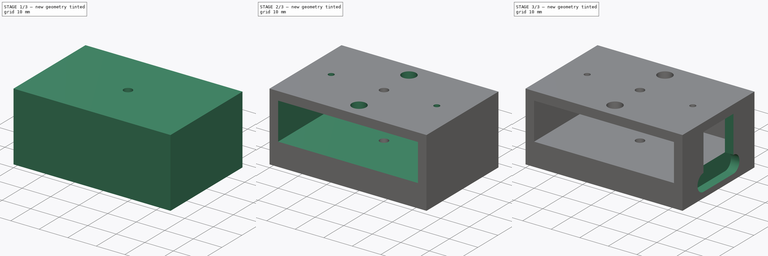
[diagram: build sequence overview — one tinted view per stage of 3, left to right]
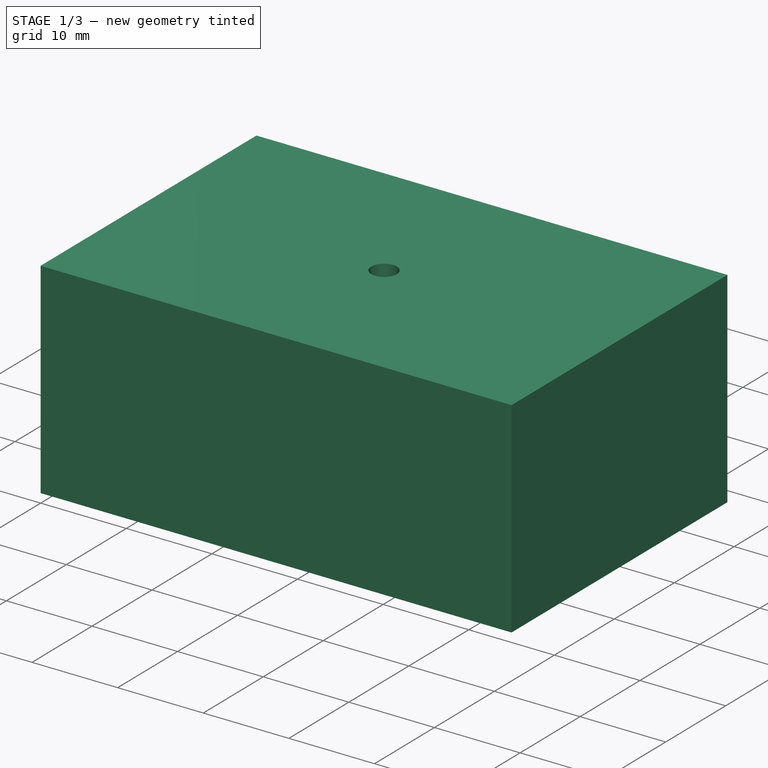
[diagram: stage 1 of 3 — iso view after this stage's code; geometry added in this stage tinted green]
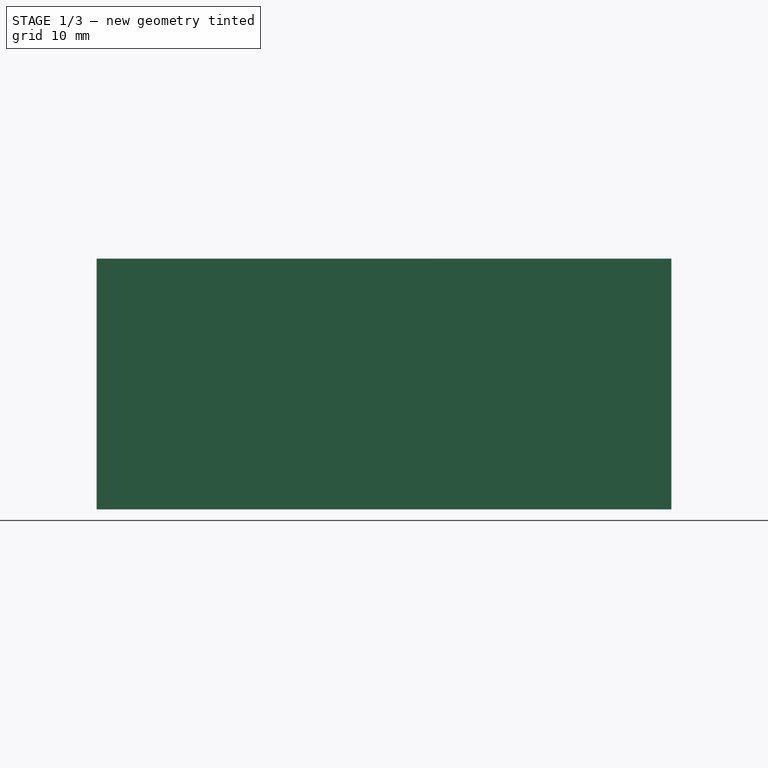
[diagram: stage 1 of 3 — front view after this stage's code; geometry added in this stage tinted green]
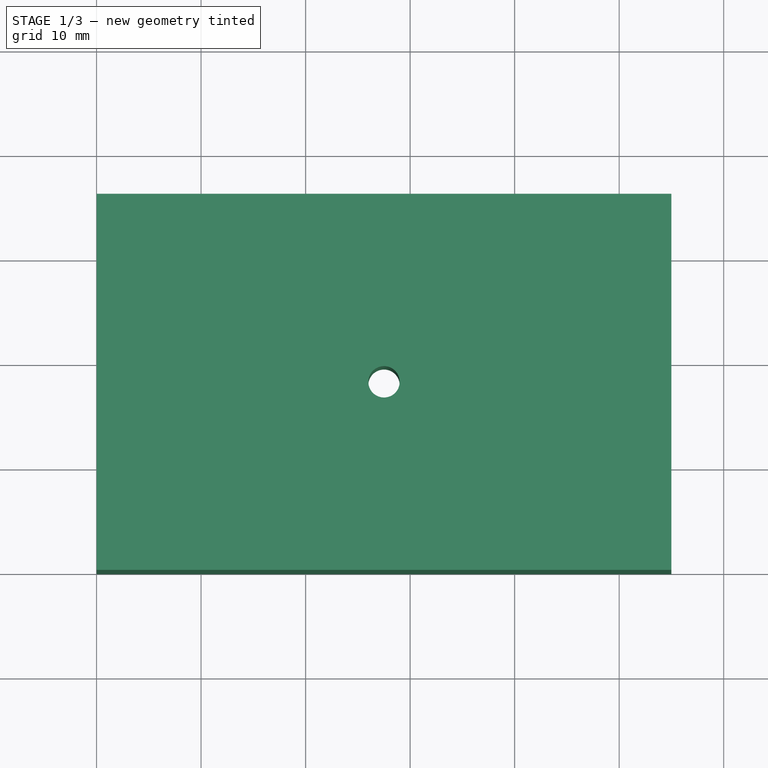
[diagram: stage 1 of 3 — top view after this stage's code; geometry added in this stage tinted green]
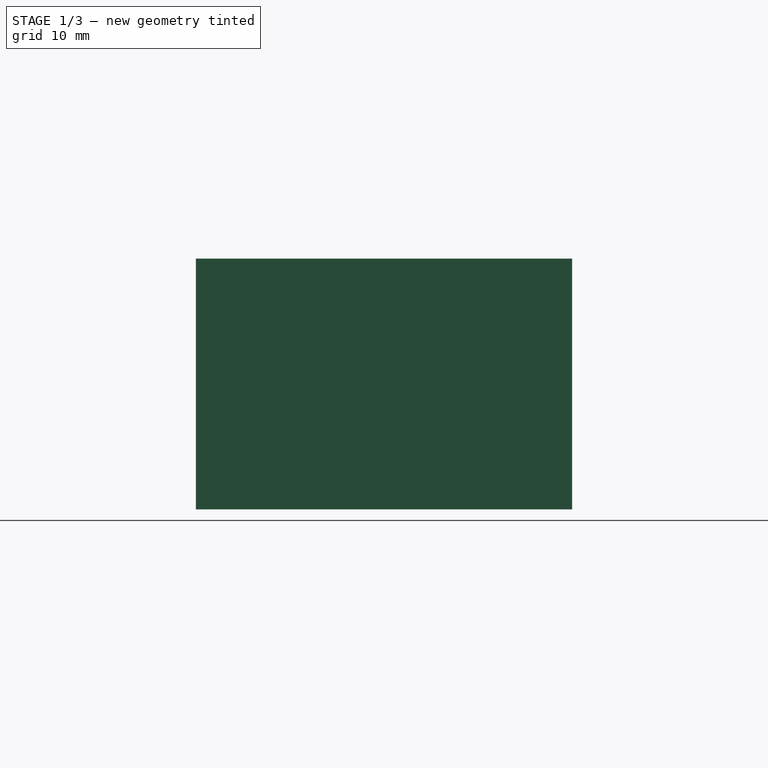
[diagram: stage 1 of 3 — right view after this stage's code; geometry added in this stage tinted green]
FCSTD DOCUMENT  (FreeCAD 0.16R6706 (Git))
Label: mechnical_box_v3
License: All rights reserved
LicenseURL: http://en.wikipedia.org/wiki/All_rights_reserved
objects: Sketcher::SketchObject×6, PartDesign::Pocket×5, PartDesign::Pad×1
note: 18 computed .brp shape members not serialized (recipe doc carries the construction recipe); baked Part::Feature solids carry a one-line shape summary decoded from their .brp

FEATURE [Sketcher::SketchObject] Sketch
  sketch-geometry (5):
    g0: LineSegment StartX=0 StartY=36 StartZ=0 EndX=55 EndY=36 EndZ=0
    g1: LineSegment StartX=55 StartY=36 StartZ=0 EndX=55 EndY=0 EndZ=0
    g2: LineSegment StartX=55 StartY=0 StartZ=0 EndX=0 EndY=0 EndZ=0
    g3: LineSegment StartX=0 StartY=0 StartZ=0 EndX=0 EndY=36 EndZ=0
    g4: Circle CenterX=27.5 CenterY=18 CenterZ=0 NormalX=0 NormalY=0 NormalZ=1 Radius=1.5
  constraints (14):
    c: Coincident(g0,g1)
    c: Coincident(g1,g2)
    c: Coincident(g2,g3)
    c: Coincident(g3,g0)
    c: Horizontal(g0)
    c: Horizontal(g2)
    c: Vertical(g1)
    c: Vertical(g3)
    c: DistanceX(g0,g0) = 55
    c: DistanceY(g1,g1) = 36
    c: Coincident(g2,g-1)
    c: Radius(g4) = 1.5
    c: DistanceX(g-1,g4) = 27.5
    c: DistanceY(g-1,g4) = 18
FEATURE [PartDesign::Pad] Pad
  Length = 24
  Length2 = 100
  Sketch = -> Sketch
  Type = 0
FEATURE [Sketcher::SketchObject] Sketch001
  ExternalGeometry = -> [Pad]
  Placement = pos=(0,0,0) rot=(1,0,0;3.14159rad)
  Support = -> Pad [Face6]
  sketch-geometry (1):
    g0: Circle CenterX=27.5 CenterY=-18 CenterZ=0 NormalX=0 NormalY=0 NormalZ=1 Radius=12.5
  constraints (2):
    c: Radius(g0) = 12.5
    c: Coincident(g0,g-3)
FEATURE [PartDesign::Pocket] Pocket
  Length = 5
  Sketch = -> Sketch001
  Type = 0
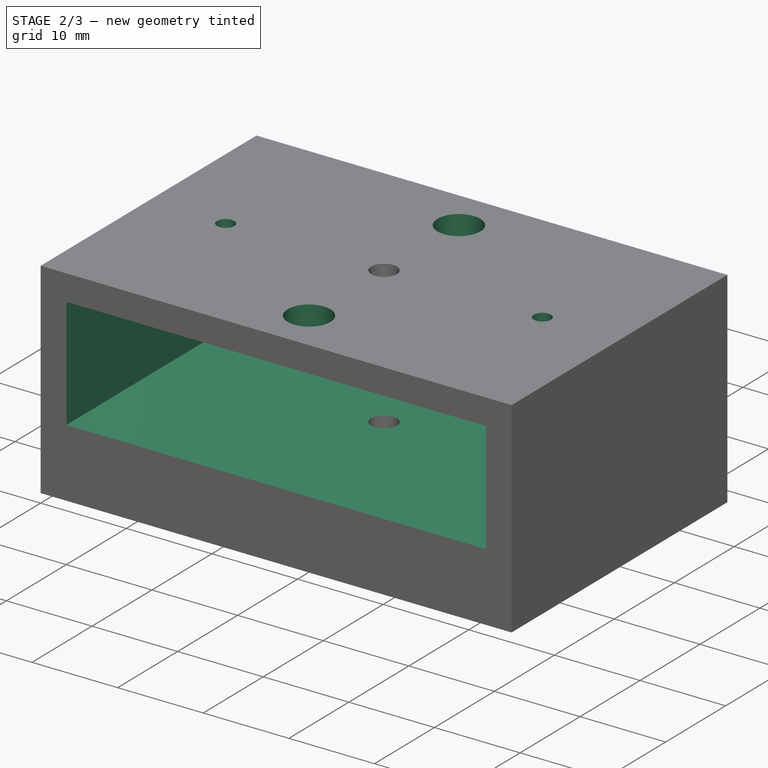
[diagram: stage 2 of 3 — iso view after this stage's code; geometry added in this stage tinted green]
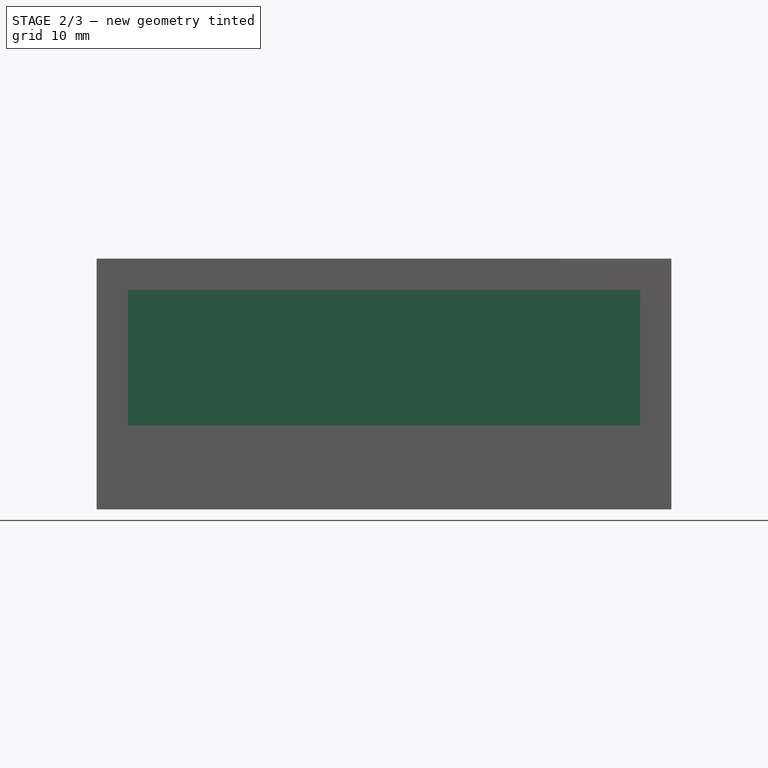
[diagram: stage 2 of 3 — front view after this stage's code; geometry added in this stage tinted green]
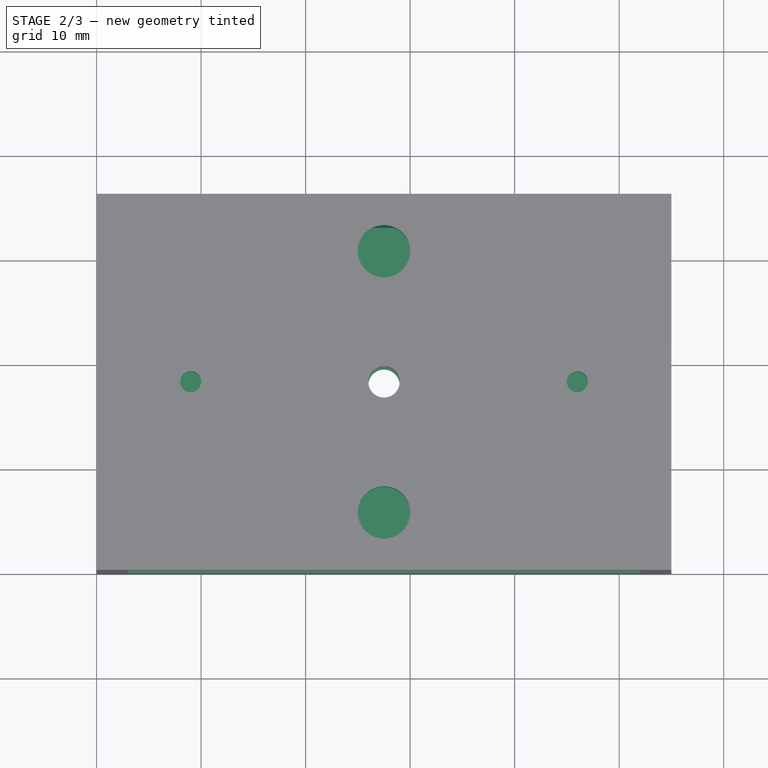
[diagram: stage 2 of 3 — top view after this stage's code; geometry added in this stage tinted green]
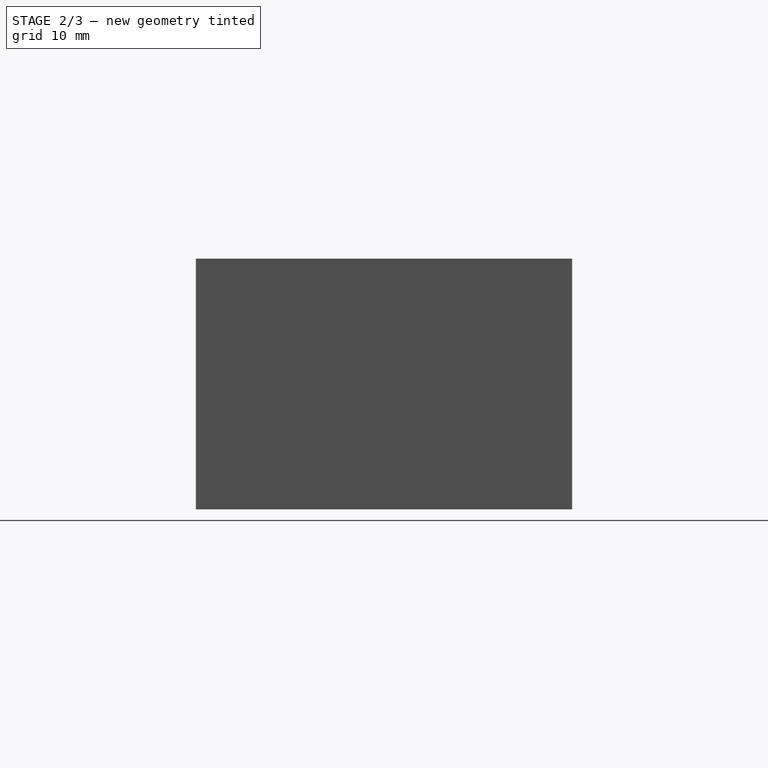
[diagram: stage 2 of 3 — right view after this stage's code; geometry added in this stage tinted green]
FEATURE [Sketcher::SketchObject] Sketch002
  ExternalGeometry = -> [Pocket]
  Placement = pos=(0,0,0) rot=(1,0,0;1.5708rad)
  Support = -> Pocket [Face6]
  sketch-geometry (4):
    g0: LineSegment StartX=3 StartY=21 StartZ=0 EndX=52 EndY=21 EndZ=0
    g1: LineSegment StartX=52 StartY=21 StartZ=0 EndX=52 EndY=8 EndZ=0
    g2: LineSegment StartX=52 StartY=8 StartZ=0 EndX=3 EndY=8 EndZ=0
    g3: LineSegment StartX=3 StartY=8 StartZ=0 EndX=3 EndY=21 EndZ=0
  constraints (12):
    c: Coincident(g0,g1)
    c: Coincident(g1,g2)
    c: Coincident(g2,g3)
    c: Coincident(g3,g0)
    c: Horizontal(g0)
    c: Horizontal(g2)
    c: Vertical(g1)
    c: Vertical(g3)
    c: DistanceY(g-1,g2) = 8
    c: DistanceX(g-1,g2) = 3
    c: DistanceX(g1,g-5) = 3
    c: DistanceY(g0,g-6) = 3
FEATURE [PartDesign::Pocket] Pocket001
  Length = 33
  Sketch = -> Sketch002
  Type = 0
FEATURE [Sketcher::SketchObject] Sketch003
  ExternalGeometry = -> [Pocket001]
  Placement = pos=(0,0,24) rot=(0,0,1;0rad)
  Support = -> Pocket001 [Face5]
  sketch-geometry (4):
    g0: Circle CenterX=9 CenterY=18 CenterZ=0 NormalX=0 NormalY=0 NormalZ=1 Radius=1
    g1: Circle CenterX=46 CenterY=18 CenterZ=0 NormalX=0 NormalY=0 NormalZ=1 Radius=1
    g2: Circle CenterX=27.5 CenterY=30.5 CenterZ=0 NormalX=0 NormalY=0 NormalZ=1 Radius=2.5
    g3: Circle CenterX=27.5 CenterY=5.5 CenterZ=0 NormalX=0 NormalY=0 NormalZ=1 Radius=2.5
  constraints (12):
    c: Radius(g0) = 1
    c: Radius(g1) = 1
    c: DistanceX(g0,g-7) = 18.5
    c: DistanceX(g-7,g1) = 18.5
    c: DistanceY(g-7,g0) = 0
    c: DistanceY(g-7,g1) = 0
    c: Radius(g2) = 2.5
    c: Radius(g3) = 2.5
    c: DistanceX(g3,g-7) = 0
    c: DistanceX(g2,g-7) = 0
    c: DistanceY(g2,g-6) = 5.5
    c: DistanceY(g-1,g3) = 5.5
FEATURE [PartDesign::Pocket] Pocket002
  Length = 3
  Sketch = -> Sketch003
  Type = 0
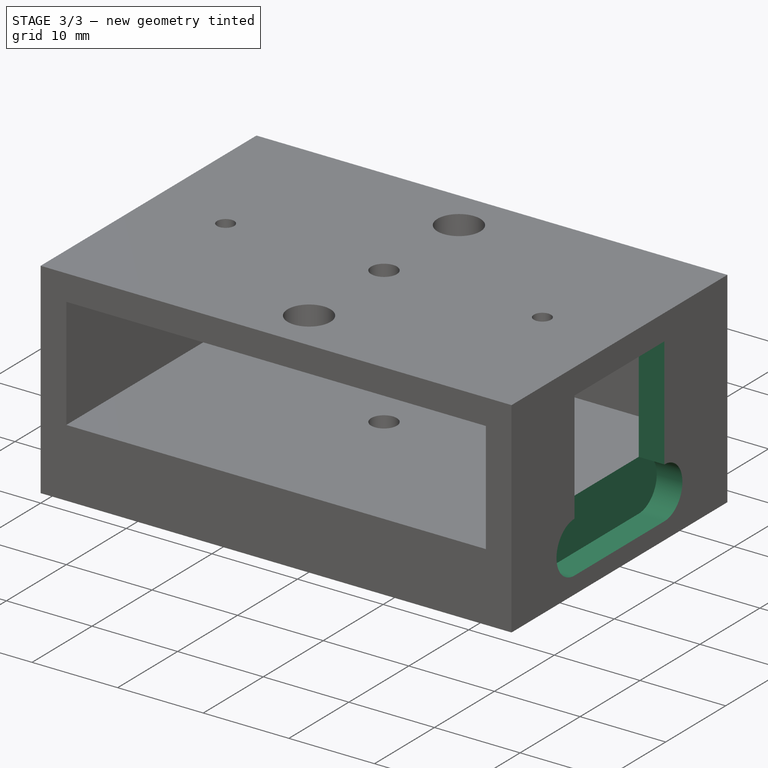
[diagram: stage 3 of 3 — iso view after this stage's code; geometry added in this stage tinted green]
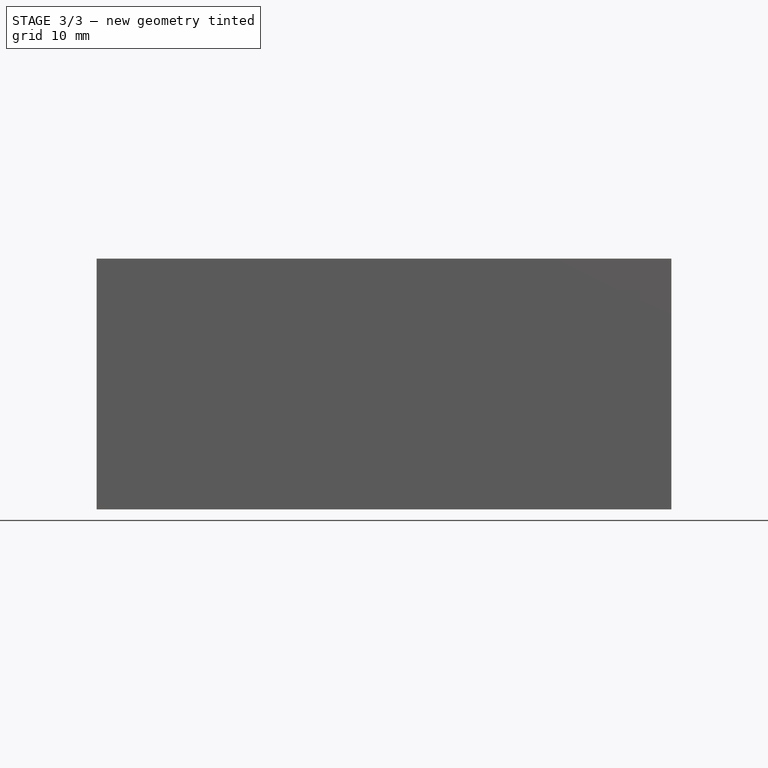
[diagram: stage 3 of 3 — front view after this stage's code; geometry added in this stage tinted green]
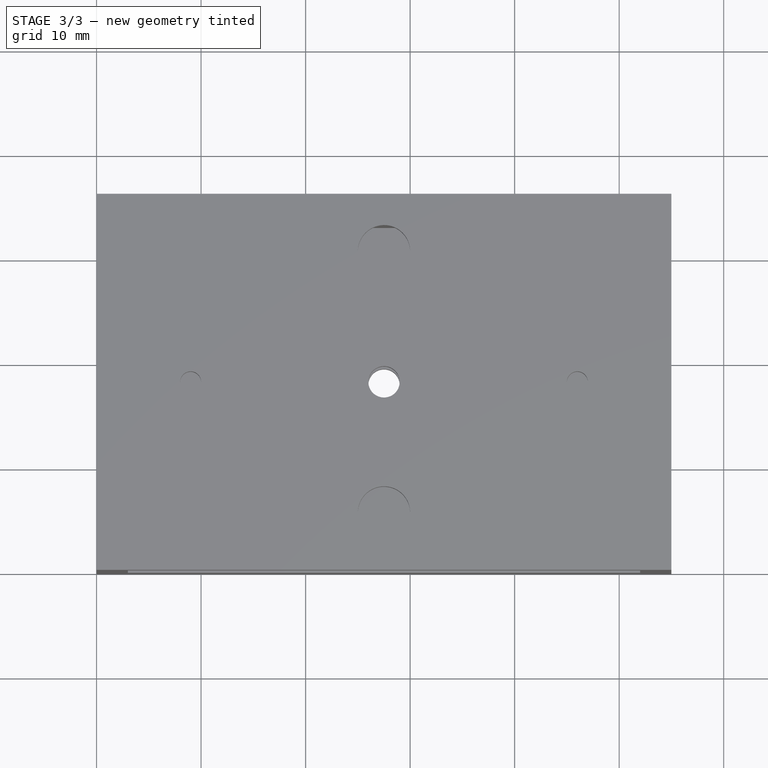
[diagram: stage 3 of 3 — top view after this stage's code; geometry added in this stage tinted green]
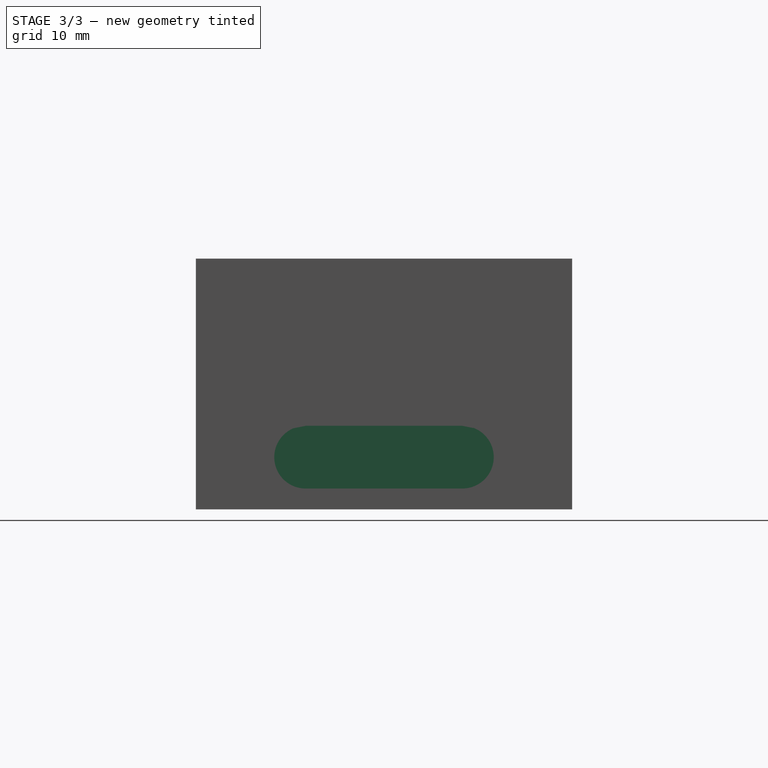
[diagram: stage 3 of 3 — right view after this stage's code; geometry added in this stage tinted green]
FEATURE [Sketcher::SketchObject] Sketch004
  ExternalGeometry = -> [Pocket002]
  Placement = pos=(55,0,0) rot=(0.57735,0.57735,0.57735;2.0944rad)
  Support = -> Pocket002 [Face3]
  sketch-geometry (4):
    g0: LineSegment StartX=10.5 StartY=21 StartZ=0 EndX=25.5 EndY=21 EndZ=0
    g1: LineSegment StartX=25.5 StartY=21 StartZ=0 EndX=25.5 EndY=8 EndZ=0
    g2: LineSegment StartX=25.5 StartY=8 StartZ=0 EndX=10.5 EndY=8 EndZ=0
    g3: LineSegment StartX=10.5 StartY=8 StartZ=0 EndX=10.5 EndY=21 EndZ=0
  constraints (12):
    c: Coincident(g0,g1)
    c: Coincident(g1,g2)
    c: Coincident(g2,g3)
    c: Coincident(g3,g0)
    c: Horizontal(g0)
    c: Horizontal(g2)
    c: Vertical(g1)
    c: Vertical(g3)
    c: DistanceX(g0,g0) = 15
    c: DistanceY(g1,g1) = 13
    c: DistanceY(g0,g-4) = 3
    c: DistanceX(g-4,g0) = 10.5
FEATURE [PartDesign::Pocket] Pocket003
  Length = 3
  Sketch = -> Sketch004
  Type = 0
FEATURE [Sketcher::SketchObject] Sketch005
  ExternalGeometry = -> [Pocket003]
  Placement = pos=(55,0,0) rot=(0.57735,0.57735,0.57735;2.0944rad)
  Support = -> Pocket003 [Face3]
  sketch-geometry (4):
    g0: ArcOfCircle CenterX=10.5 CenterY=5 CenterZ=0 NormalX=0 NormalY=0 NormalZ=1 Radius=3 StartAngle=1.5708 EndAngle=4.71239
    g1: ArcOfCircle CenterX=25.5 CenterY=5 CenterZ=0 NormalX=0 NormalY=0 NormalZ=1 Radius=3 StartAngle=4.71239 EndAngle=7.85398
    g2: LineSegment StartX=10.5 StartY=2 StartZ=0 EndX=25.5 EndY=2 EndZ=0
    g3: LineSegment StartX=10.5 StartY=8 StartZ=0 EndX=25.5 EndY=8 EndZ=0
  constraints (10):
    c: Tangent(g0,g3) = 1.5708
    c: Tangent(g0,g2) = -1.5708
    c: Tangent(g2,g1) = -1.5708
    c: Tangent(g3,g1) = 1.5708
    c: Horizontal(g2)
    c: Equal(g0,g1)
    c: DistanceY(g0,g0) = 6
    c: DistanceX(g0,g-5) = 0
    c: DistanceX(g-4,g1) = 0
    c: DistanceY(g-5,g0) = 0
FEATURE [PartDesign::Pocket] Pocket004
  Length = 3
  Sketch = -> Sketch005
  Type = 0
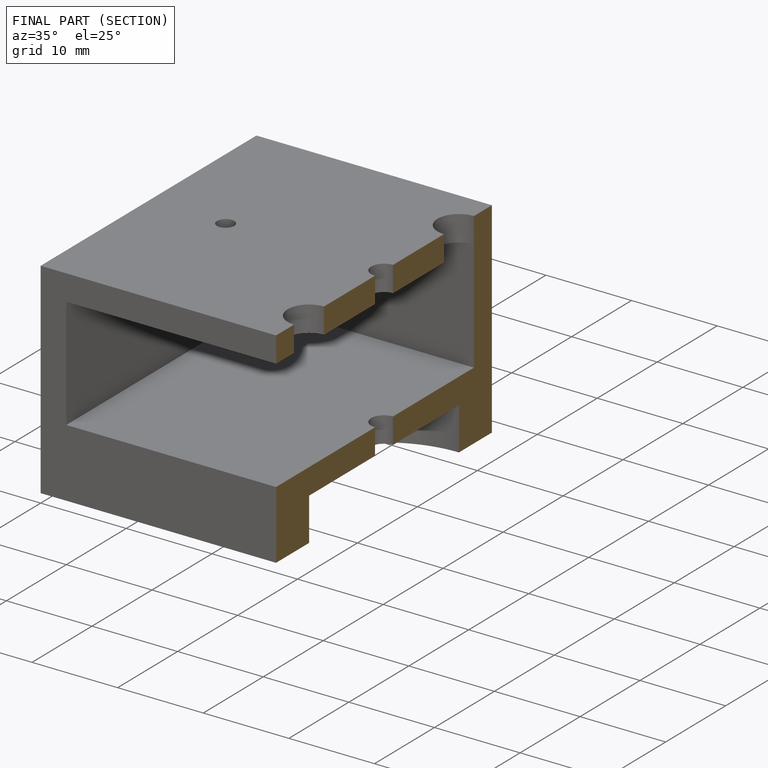
[diagram: finished part — half-section view (interior)]
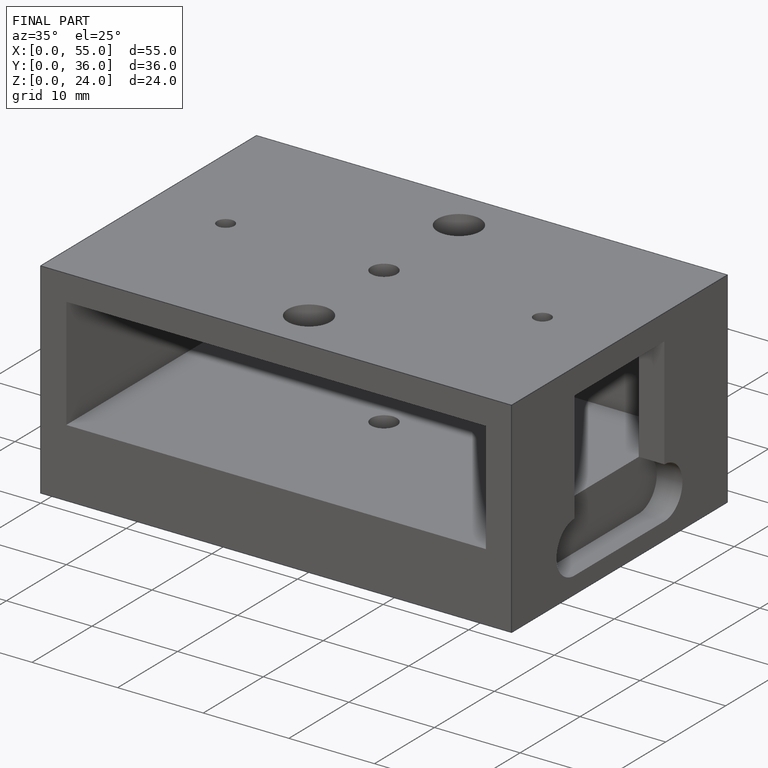
[diagram: finished part — iso view with bounding-box wireframe]
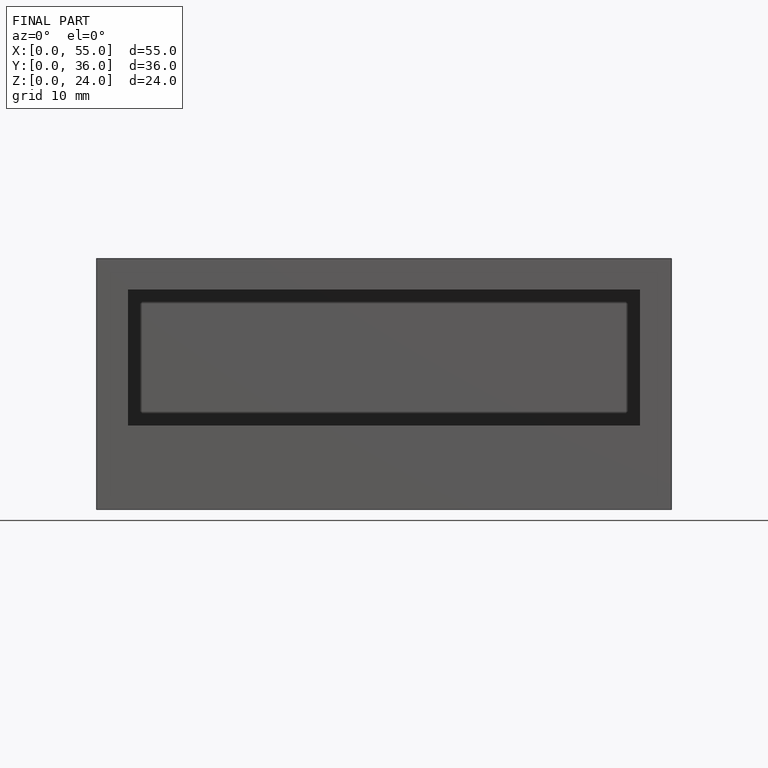
[diagram: finished part — front view with bounding-box wireframe]
